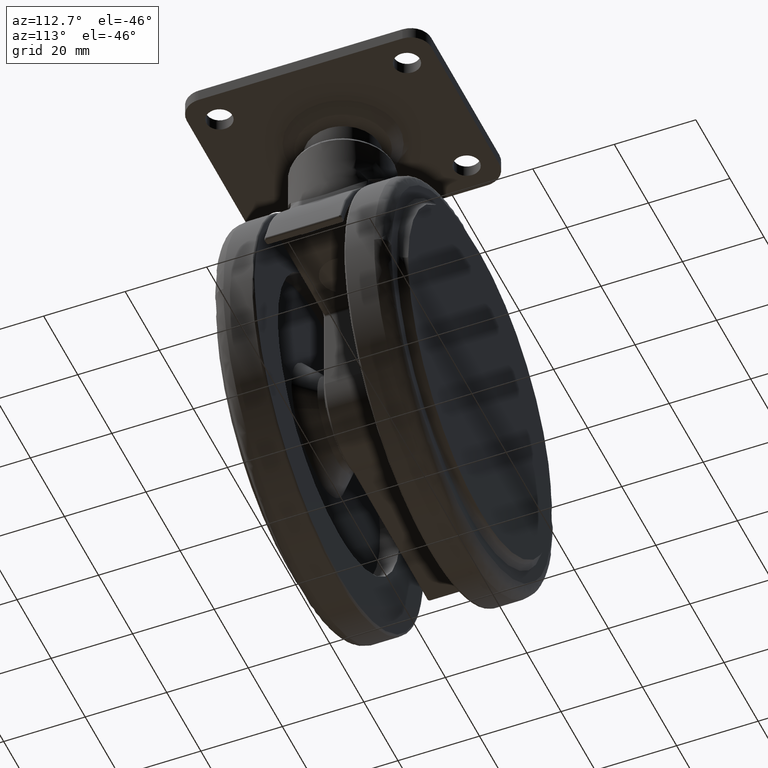
[diagram: clean part render]
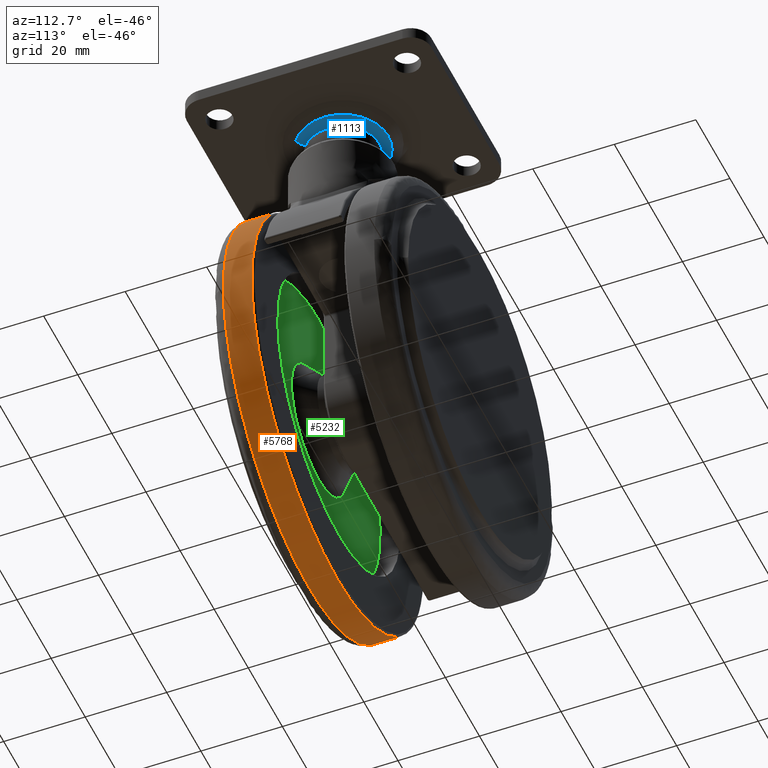
[diagram: same view with three faces highlighted in distinct colors, each labeled with its STEP entity id]
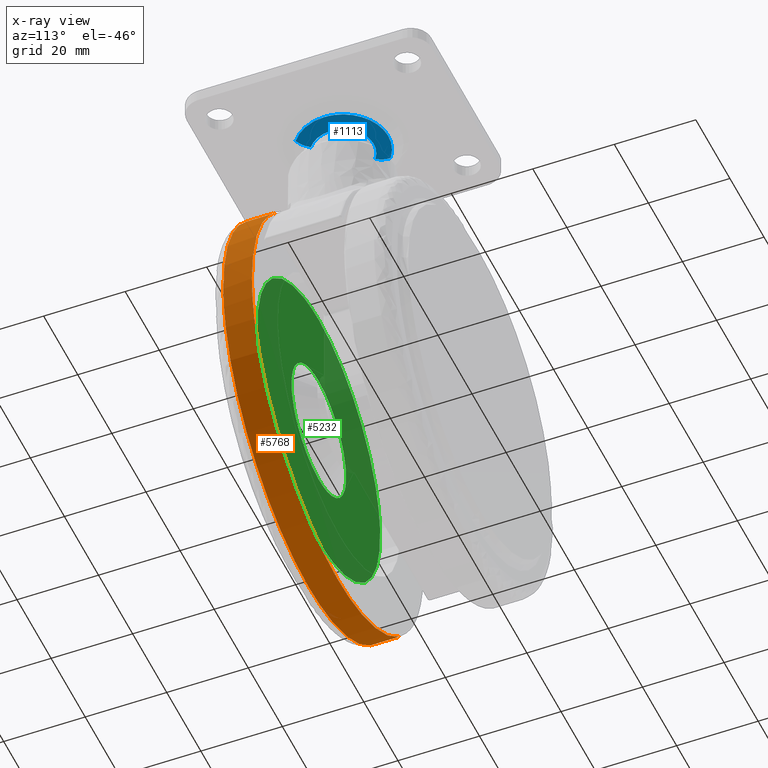
[diagram: x-ray of the same camera — body ghosted, the three highlighted faces saturated]
A machine part, auxiliary view with three faces highlighted in distinct colors.
The next image is the same camera in x-ray (body ghosted, the three faces saturated) — at least one of them is partly hidden behind the body in this view.
Their STEP definitions:

[orange] entity #5768 — the highlighted face is a freeform B-spline surface patch.
#5490=CARTESIAN_POINT('',(12.268719929465121,-11.499999997540820,-19.082272668317930));
#5491=VERTEX_POINT('',#5490);
#5505=CARTESIAN_POINT('',(25.999999999999989,-11.499999995257051,-53.500000000000007));
#5506=VERTEX_POINT('',#5505);
#5507=CARTESIAN_POINT('',(25.999999999999996,-11.499999995257053,-53.500000000000014));
#5508=CARTESIAN_POINT('',(26.000000000000004,-11.499999996203208,-33.552023862285985));
#5509=CARTESIAN_POINT('',(12.268719929465151,-11.499999997540813,-19.082272668317895));
#5517=(BOUNDED_CURVE()B_SPLINE_CURVE(2,(#5507,#5508,#5509),.UNSPECIFIED.,.F.,.U.)B_SPLINE_CURVE_WITH_KNOTS((3,3),(0.250000000000000,0.371049520613116),.UNSPECIFIED.)CURVE()GEOMETRIC_REPRESENTATION_ITEM()RATIONAL_B_SPLINE_CURVE((1.000000000000000,0.858181665087196,0.853699661817154))REPRESENTATION_ITEM(''));
#5518=EDGE_CURVE('',#5506,#5491,#5517,.T.);
#5567=CARTESIAN_POINT('',(-24.0,-11.500000000000160,-103.500000000000000));
#5568=VERTEX_POINT('',#5567);
#5569=CARTESIAN_POINT('',(-24.0,-11.500000000000160,-103.500000000000000));
#5570=CARTESIAN_POINT('',(25.999999999999961,-11.499999997628603,-103.500000000000000));
#5571=CARTESIAN_POINT('',(25.999999999999996,-11.499999995257053,-53.500000000000014));
#5579=(BOUNDED_CURVE()B_SPLINE_CURVE(2,(#5569,#5570,#5571),.UNSPECIFIED.,.F.,.U.)B_SPLINE_CURVE_WITH_KNOTS((3,3),(0.0,0.250000000000000),.UNSPECIFIED.)CURVE()GEOMETRIC_REPRESENTATION_ITEM()RATIONAL_B_SPLINE_CURVE((1.0,0.707106781186548,1.000000000000000))REPRESENTATION_ITEM(''));
#5580=EDGE_CURVE('',#5568,#5506,#5579,.T.);
#5582=CARTESIAN_POINT('',(-60.268719929465121,-11.499999997540820,-87.917727331682073));
#5583=VERTEX_POINT('',#5582);
#5584=CARTESIAN_POINT('',(-60.268719929465142,-11.499999997540812,-87.917727331682102));
#5585=CARTESIAN_POINT('',(-45.481696484769884,-11.499999998981259,-103.500000000000000));
#5586=CARTESIAN_POINT('',(-24.0,-11.500000000000160,-103.500000000000000));
#5594=(BOUNDED_CURVE()B_SPLINE_CURVE(2,(#5584,#5585,#5586),.UNSPECIFIED.,.F.,.U.)B_SPLINE_CURVE_WITH_KNOTS((3,3),(0.871049520613116,1.0),.UNSPECIFIED.)CURVE()GEOMETRIC_REPRESENTATION_ITEM()RATIONAL_B_SPLINE_CURVE((0.853699661817154,0.848925116099352,1.0))REPRESENTATION_ITEM(''));
#5595=EDGE_CURVE('',#5583,#5568,#5594,.T.);
#5636=CARTESIAN_POINT('',(-60.268719912852468,-18.500000000675200,-87.917727349188155));
#5637=VERTEX_POINT('',#5636);
#5638=CARTESIAN_POINT('',(-60.268719929465121,-11.499999997540820,-87.917727331682073));
#5639=CARTESIAN_POINT('',(-60.268719912852468,-18.500000000675200,-87.917727349188155));
#5640=QUASI_UNIFORM_CURVE('',1,(#5638,#5639),.UNSPECIFIED.,.F.,.U.);
#5641=EDGE_CURVE('',#5583,#5637,#5640,.T.);
#5675=CARTESIAN_POINT('',(12.268719912852470,-18.500000000675200,-19.082272650811849));
#5676=VERTEX_POINT('',#5675);
#5690=CARTESIAN_POINT('',(12.268719929465121,-11.499999997540820,-19.082272668317930));
#5691=CARTESIAN_POINT('',(12.268719912852470,-18.500000000675200,-19.082272650811849));
#5692=QUASI_UNIFORM_CURVE('',1,(#5690,#5691),.UNSPECIFIED.,.F.,.U.);
#5693=EDGE_CURVE('',#5491,#5676,#5692,.T.);
#5698=CARTESIAN_POINT('',(-60.268718550614373,-11.324999995105641,-87.917728784687682));
#5699=CARTESIAN_POINT('',(-25.850989765926684,-11.324999995105635,-124.186447335302060));
#5700=CARTESIAN_POINT('',(10.417728784687689,-11.324999995105641,-89.768718550614381));
#5701=CARTESIAN_POINT('',(46.686447335302063,-11.324999995105635,-55.350989765926691));
#5702=CARTESIAN_POINT('',(12.268718550614370,-11.324999995105641,-19.082271215312311));
#5703=CARTESIAN_POINT('',(-60.268718550614373,-18.679375001468870,-87.917728784687682));
#5704=CARTESIAN_POINT('',(-25.850989765926684,-18.679375001468877,-124.186447335302060));
#5705=CARTESIAN_POINT('',(10.417728784687689,-18.679375001468870,-89.768718550614381));
#5706=CARTESIAN_POINT('',(46.686447335302063,-18.679375001468877,-55.350989765926691));
#5707=CARTESIAN_POINT('',(12.268718550614370,-18.679375001468870,-19.082271215312311));
#5715=(BOUNDED_SURFACE()B_SPLINE_SURFACE(2,1,((#5698,#5703),(#5699,#5704),(#5700,#5705),(#5701,#5706),(#5702,#5707)),.UNSPECIFIED.,.F.,.F.,.U.)B_SPLINE_SURFACE_WITH_KNOTS((3,2,3),(2,2),(0.0,82.842712474618992,165.685424949238010),(0.0,7.354375006363235),.UNSPECIFIED.)GEOMETRIC_REPRESENTATION_ITEM()RATIONAL_B_SPLINE_SURFACE(((1.0,1.0),(0.707106781186548,0.707106781186548),(1.0,1.0),(0.707106781186548,0.707106781186548),(1.0,1.0)))REPRESENTATION_ITEM('')SURFACE());
#5716=ORIENTED_EDGE('',*,*,#5518,.T.);
#5717=ORIENTED_EDGE('',*,*,#5693,.T.);
#5718=CARTESIAN_POINT('',(25.996052210190680,-18.500000001313669,-54.128301994176859));
#5719=VERTEX_POINT('',#5718);
#5720=CARTESIAN_POINT('',(25.996052210190687,-18.500000001313666,-54.128301994176852));
#5721=CARTESIAN_POINT('',(25.999999999999996,-18.500000001309594,-53.814163399599096));
#5722=CARTESIAN_POINT('',(25.999999999999989,-18.500000001305470,-53.499999999999993));
#5723=CARTESIAN_POINT('',(25.999999999999993,-18.500000001043414,-33.552023848298361));
#5724=CARTESIAN_POINT('',(12.268719912852504,-18.500000000675211,-19.082272650811820));
#5732=(BOUNDED_CURVE()B_SPLINE_CURVE(2,(#5720,#5721,#5722,#5723,#5724),.UNSPECIFIED.,.F.,.U.)B_SPLINE_CURVE_WITH_KNOTS((3,2,3),(0.247784295921696,0.250000000000000,0.371049520685959),.UNSPECIFIED.)CURVE()GEOMETRIC_REPRESENTATION_ITEM()RATIONAL_B_SPLINE_CURVE((0.994854295643937,0.997404141202269,1.0,0.858181665001855,0.853699661811760))REPRESENTATION_ITEM(''));
#5733=EDGE_CURVE('',#5719,#5676,#5732,.T.);
#5734=ORIENTED_EDGE('',*,*,#5733,.F.);
#5735=CARTESIAN_POINT('',(-24.0,-18.500000000000000,-103.500000000000000));
#5736=VERTEX_POINT('',#5735);
#5737=CARTESIAN_POINT('',(-24.0,-18.500000000000000,-103.500000000000000));
#5738=CARTESIAN_POINT('',(25.375596495356582,-18.500000000656833,-103.500000000000010));
#5739=CARTESIAN_POINT('',(25.996052210190687,-18.500000001313666,-54.128301994176852));
#5747=(BOUNDED_CURVE()B_SPLINE_CURVE(2,(#5737,#5738,#5739),.UNSPECIFIED.,.F.,.U.)B_SPLINE_CURVE_WITH_KNOTS((3,3),(0.0,0.247784295921696),.UNSPECIFIED.)CURVE()GEOMETRIC_REPRESENTATION_ITEM()RATIONAL_B_SPLINE_CURVE((1.0,0.709702639984278,0.994854295643937))REPRESENTATION_ITEM(''));
#5748=EDGE_CURVE('',#5736,#5719,#5747,.T.);
#5749=ORIENTED_EDGE('',*,*,#5748,.F.);
#5750=CARTESIAN_POINT('',(-60.268719912852497,-18.500000000675211,-87.917727349188198));
#5751=CARTESIAN_POINT('',(-45.481696470475583,-18.500000000278675,-103.500000000000030));
#5752=CARTESIAN_POINT('',(-24.0,-18.500000000000000,-103.500000000000000));
#5760=(BOUNDED_CURVE()B_SPLINE_CURVE(2,(#5750,#5751,#5752),.UNSPECIFIED.,.F.,.U.)B_SPLINE_CURVE_WITH_KNOTS((3,3),(0.871049520685959,1.0),.UNSPECIFIED.)CURVE()GEOMETRIC_REPRESENTATION_ITEM()RATIONAL_B_SPLINE_CURVE((0.853699661811760,0.848925116184692,1.0))REPRESENTATION_ITEM(''));
#5761=EDGE_CURVE('',#5637,#5736,#5760,.T.);
#5762=ORIENTED_EDGE('',*,*,#5761,.F.);
#5763=ORIENTED_EDGE('',*,*,#5641,.F.);
#5764=ORIENTED_EDGE('',*,*,#5595,.T.);
#5765=ORIENTED_EDGE('',*,*,#5580,.T.);
#5766=EDGE_LOOP('',(#5716,#5717,#5734,#5749,#5762,#5763,#5764,#5765));
#5767=FACE_OUTER_BOUND('',#5766,.T.);
#5768=ADVANCED_FACE('',(#5767),#5715,.T.);

[blue] entity #1113 — the highlighted face is a freeform B-spline surface patch.
#859=CARTESIAN_POINT('',(-4.501153219696314,6.034363179694740,7.500000000000001));
#860=VERTEX_POINT('',#859);
#874=CARTESIAN_POINT('',(7.528208238966269,0.0,7.500000000000000));
#875=VERTEX_POINT('',#874);
#876=CARTESIAN_POINT('',(-4.501153219696314,6.034363179694741,7.500000000000001));
#877=CARTESIAN_POINT('',(-2.498465645499179,7.528208239083329,7.500000000000002));
#878=CARTESIAN_POINT('',(-7.151278E-011,7.528208239062140,7.500000000000001));
#879=CARTESIAN_POINT('',(7.528208238942382,7.528208238998296,7.500000000000000));
#880=CARTESIAN_POINT('',(7.528208238966269,0.0,7.500000000000000));
#888=(BOUNDED_CURVE()B_SPLINE_CURVE(2,(#876,#877,#878,#879,#880),.UNSPECIFIED.,.F.,.U.)B_SPLINE_CURVE_WITH_KNOTS((3,2,3),(0.146843395504164,0.250000000000000,0.500000000000000),.UNSPECIFIED.)CURVE()GEOMETRIC_REPRESENTATION_ITEM()RATIONAL_B_SPLINE_CURVE((0.858025367928584,0.879144520269393,1.0,0.707106781186547,1.0))REPRESENTATION_ITEM(''));
#889=EDGE_CURVE('',#860,#875,#888,.T.);
#891=CARTESIAN_POINT('',(4.501153219696315,-6.034363179694740,7.500000000000001));
#892=VERTEX_POINT('',#891);
#893=CARTESIAN_POINT('',(7.528208238966269,0.0,7.500000000000000));
#894=CARTESIAN_POINT('',(7.528208239013894,-3.776421779540552,7.500000000000000));
#895=CARTESIAN_POINT('',(4.501153219696316,-6.034363179694740,7.500000000000001));
#903=(BOUNDED_CURVE()B_SPLINE_CURVE(2,(#893,#894,#895),.UNSPECIFIED.,.F.,.U.)B_SPLINE_CURVE_WITH_KNOTS((3,3),(0.500000000000000,0.646843395504164),.UNSPECIFIED.)CURVE()GEOMETRIC_REPRESENTATION_ITEM()RATIONAL_B_SPLINE_CURVE((1.0,0.827962260917154,0.858025367928585))REPRESENTATION_ITEM(''));
#904=EDGE_CURVE('',#875,#892,#903,.T.);
#953=CARTESIAN_POINT('',(6.629213184139835,-8.887295765282616,8.669664975522940));
#954=VERTEX_POINT('',#953);
#987=CARTESIAN_POINT('',(-6.629213184139832,8.887295765282619,8.669664975522940));
#988=VERTEX_POINT('',#987);
#1002=CARTESIAN_POINT('',(-6.629213184139834,8.887295765282619,8.669664975522940));
#1003=CARTESIAN_POINT('',(-5.680097338947445,7.614886356019974,7.500000000052344));
#1004=CARTESIAN_POINT('',(-4.501153219696314,6.034363179694740,7.500000000000001));
#1012=(BOUNDED_CURVE()B_SPLINE_CURVE(2,(#1002,#1003,#1004),.UNSPECIFIED.,.F.,.U.)B_SPLINE_CURVE_WITH_KNOTS((3,3),(-1.510568351530150,-0.500285363390647),.UNSPECIFIED.)CURVE()GEOMETRIC_REPRESENTATION_ITEM()RATIONAL_B_SPLINE_CURVE((0.932509883312894,0.885422486717353,0.931508894556973))REPRESENTATION_ITEM(''));
#1013=EDGE_CURVE('',#988,#860,#1012,.T.);
#1017=CARTESIAN_POINT('',(6.629213184139836,-8.887295765282616,8.669664975522940));
#1018=CARTESIAN_POINT('',(5.680097338947446,-7.614886356019972,7.500000000052344));
#1019=CARTESIAN_POINT('',(4.501153219696315,-6.034363179694740,7.500000000000001));
#1027=(BOUNDED_CURVE()B_SPLINE_CURVE(2,(#1017,#1018,#1019),.UNSPECIFIED.,.F.,.U.)B_SPLINE_CURVE_WITH_KNOTS((3,3),(-1.510568351530149,-0.500285363390647),.UNSPECIFIED.)CURVE()GEOMETRIC_REPRESENTATION_ITEM()RATIONAL_B_SPLINE_CURVE((0.932509883312894,0.885422486717353,0.931508894556973))REPRESENTATION_ITEM(''));
#1028=EDGE_CURVE('',#954,#892,#1027,.T.);
#1033=CARTESIAN_POINT('',(-6.969751588446066,8.818466900476311,8.782642864346631));
#1034=CARTESIAN_POINT('',(-6.844591664319984,8.911826212581886,8.782642864346631));
#1035=CARTESIAN_POINT('',(2.288313896593353,15.724244697536644,8.782642864346631));
#1036=CARTESIAN_POINT('',(9.006279297064996,6.717965400471642,8.782642864346631));
#1037=CARTESIAN_POINT('',(15.724244697536644,-2.288313896593353,8.782642864346631));
#1038=CARTESIAN_POINT('',(6.591339136687957,-9.100732381499876,8.782642864346631));
#1039=CARTESIAN_POINT('',(6.466179212625038,-9.194091693558336,8.782642864346631));
#1040=CARTESIAN_POINT('',(-5.906155073983933,7.472753134465684,7.435036152212846));
#1041=CARTESIAN_POINT('',(-5.800094777349816,7.551865649151295,7.435036152212846));
#1042=CARTESIAN_POINT('',(1.939113117551729,13.324696931648703,7.435036152212846));
#1043=CARTESIAN_POINT('',(7.631905024600217,5.692791907048486,7.435036152212846));
#1044=CARTESIAN_POINT('',(13.324696931648703,-1.939113117551729,7.435036152212846));
#1045=CARTESIAN_POINT('',(5.585489036801946,-7.711944400008268,7.435036152212846));
#1046=CARTESIAN_POINT('',(5.479428740221354,-7.791056914653953,7.435036152212847));
#1047=CARTESIAN_POINT('',(-4.554023422974996,5.761970754606558,7.502906360166650));
#1048=CARTESIAN_POINT('',(-4.472244148799311,5.822971564848692,7.502906360166651));
#1049=CARTESIAN_POINT('',(1.495180273208090,10.274193814867029,7.502906360166650));
#1050=CARTESIAN_POINT('',(5.884687044037559,4.389506770829470,7.502906360166650));
#1051=CARTESIAN_POINT('',(10.274193814867029,-1.495180273208089,7.502906360166650));
#1052=CARTESIAN_POINT('',(4.306769392901876,-5.946402523194914,7.502906360166651));
#1053=CARTESIAN_POINT('',(4.224990118767461,-6.007403333406265,7.502906360166650));
#1061=(BOUNDED_SURFACE()B_SPLINE_SURFACE(2,2,((#1033,#1040,#1047),(#1034,#1041,#1048),(#1035,#1042,#1049),(#1036,#1043,#1050),(#1037,#1044,#1051),(#1038,#1045,#1052),(#1039,#1046,#1053)),.UNSPECIFIED.,.F.,.F.,.U.)B_SPLINE_SURFACE_WITH_KNOTS((3,1,2,1,3),(3,3),(0.0,0.372323022587151,18.988474145454511,37.604625268321882,37.976948290717807),(0.0,4.227851864218623),.UNSPECIFIED.)GEOMETRIC_REPRESENTATION_ITEM()RATIONAL_B_SPLINE_SURFACE(((0.948429253670149,0.890852106820982,0.947315361875224),(0.942937819878514,0.885694046434490,0.941830377550452),(0.662874696600855,0.622632966813323,0.662096177082662),(0.937446386086879,0.880535986047998,0.936345393225679),(0.662874696600855,0.622632966813323,0.662096177082662),(0.942937819875694,0.885694046431841,0.941830377547635),(0.948429253664508,0.890852106815684,0.947315361869590)))REPRESENTATION_ITEM('')SURFACE());
#1062=CARTESIAN_POINT('',(11.087402467265401,0.0,8.669664975879760));
#1063=VERTEX_POINT('',#1062);
#1064=CARTESIAN_POINT('',(11.087402467265401,0.0,8.669664975879760));
#1065=CARTESIAN_POINT('',(11.087402467120617,-5.561842449675254,8.669664975701350));
#1066=CARTESIAN_POINT('',(6.629213184139835,-8.887295765282616,8.669664975522940));
#1074=(BOUNDED_CURVE()B_SPLINE_CURVE(2,(#1064,#1065,#1066),.UNSPECIFIED.,.F.,.U.)B_SPLINE_CURVE_WITH_KNOTS((3,3),(0.500000000000000,0.646843395503392),.UNSPECIFIED.)CURVE()GEOMETRIC_REPRESENTATION_ITEM()RATIONAL_B_SPLINE_CURVE((1.0,0.827962260918059,0.858025367928268))REPRESENTATION_ITEM(''));
#1075=EDGE_CURVE('',#1063,#954,#1074,.T.);
#1076=ORIENTED_EDGE('',*,*,#1075,.T.);
#1077=ORIENTED_EDGE('',*,*,#1028,.T.);
#1078=ORIENTED_EDGE('',*,*,#904,.F.);
#1079=ORIENTED_EDGE('',*,*,#889,.F.);
#1080=ORIENTED_EDGE('',*,*,#1013,.F.);
#1081=CARTESIAN_POINT('',(4.242965232394036,10.243424207993501,8.669664975735962));
#1082=VERTEX_POINT('',#1081);
#1083=CARTESIAN_POINT('',(-6.629213184139832,8.887295765282619,8.669664975522940));
#1084=CARTESIAN_POINT('',(-3.679692867177703,11.087402466910236,8.669664975566958));
#1085=CARTESIAN_POINT('',(2.180427E-010,11.087402466975471,8.669664975642506));
#1086=CARTESIAN_POINT('',(2.205421473072545,11.087402467014568,8.669664975687784));
#1087=CARTESIAN_POINT('',(4.242965232394036,10.243424207993501,8.669664975735962));
#1095=(BOUNDED_CURVE()B_SPLINE_CURVE(2,(#1083,#1084,#1085,#1086,#1087),.UNSPECIFIED.,.F.,.U.)B_SPLINE_CURVE_WITH_KNOTS((3,2,3),(0.146843395503392,0.250000000000000,0.314972883119306),.UNSPECIFIED.)CURVE()GEOMETRIC_REPRESENTATION_ITEM()RATIONAL_B_SPLINE_CURVE((0.858025367928268,0.879144520268489,1.0,0.923879532510385,0.887325194918288))REPRESENTATION_ITEM(''));
#1096=EDGE_CURVE('',#988,#1082,#1095,.T.);
#1097=ORIENTED_EDGE('',*,*,#1096,.T.);
#1098=CARTESIAN_POINT('',(4.242965232394036,10.243424207993501,8.669664975735962));
#1099=CARTESIAN_POINT('',(11.087402467314435,7.408365478537292,8.669664975844473));
#1100=CARTESIAN_POINT('',(11.087402467265401,0.0,8.669664975879760));
#1108=(BOUNDED_CURVE()B_SPLINE_CURVE(2,(#1098,#1099,#1100),.UNSPECIFIED.,.F.,.U.)B_SPLINE_CURVE_WITH_KNOTS((3,3),(0.314972883119306,0.500000000000000),.UNSPECIFIED.)CURVE()GEOMETRIC_REPRESENTATION_ITEM()RATIONAL_B_SPLINE_CURVE((0.887325194918288,0.783227248676162,1.0))REPRESENTATION_ITEM(''));
#1109=EDGE_CURVE('',#1082,#1063,#1108,.T.);
#1110=ORIENTED_EDGE('',*,*,#1109,.T.);
#1111=EDGE_LOOP('',(#1076,#1077,#1078,#1079,#1080,#1097,#1110));
#1112=FACE_OUTER_BOUND('',#1111,.T.);
#1113=ADVANCED_FACE('',(#1112),#1061,.T.);

[green] entity #5232 — the highlighted face is a freeform B-spline surface patch.
#5052=CARTESIAN_POINT('',(-38.559380334012452,-16.000000000003048,-46.864908117466058));
#5053=VERTEX_POINT('',#5052);
#5059=CARTESIAN_POINT('',(-24.0,-16.0,-37.500000000000000));
#5060=VERTEX_POINT('',#5059);
#5061=CARTESIAN_POINT('',(-24.0,-16.0,-37.500000000000000));
#5062=CARTESIAN_POINT('',(-34.291545824205457,-16.000000000001521,-37.499999999999382));
#5063=CARTESIAN_POINT('',(-38.559380334012445,-16.000000000003052,-46.864908117466058));
#5071=(BOUNDED_CURVE()B_SPLINE_CURVE(2,(#5061,#5062,#5063),.UNSPECIFIED.,.F.,.U.)B_SPLINE_CURVE_WITH_KNOTS((3,3),(0.500000000000000,0.679570116084181),.UNSPECIFIED.)CURVE()GEOMETRIC_REPRESENTATION_ITEM()RATIONAL_B_SPLINE_CURVE((1.0,0.789620522789596,0.881463982734404))REPRESENTATION_ITEM(''));
#5072=EDGE_CURVE('',#5060,#5053,#5071,.T.);
#5074=CARTESIAN_POINT('',(-9.440619665987555,-16.000000000003048,-60.135091882533942));
#5075=VERTEX_POINT('',#5074);
#5076=CARTESIAN_POINT('',(-9.440619665987555,-16.000000000003052,-60.135091882533942));
#5077=CARTESIAN_POINT('',(-7.999999999997458,-16.000000000002832,-56.973940536759216));
#5078=CARTESIAN_POINT('',(-7.999999999997754,-16.000000000002512,-53.500000000001030));
#5079=CARTESIAN_POINT('',(-7.999999999999121,-16.000000000000973,-37.500000000000391));
#5080=CARTESIAN_POINT('',(-24.0,-16.0,-37.500000000000000));
#5088=(BOUNDED_CURVE()B_SPLINE_CURVE(2,(#5076,#5077,#5078,#5079,#5080),.UNSPECIFIED.,.F.,.U.)B_SPLINE_CURVE_WITH_KNOTS((3,2,3),(0.179570116084181,0.250000000000000,0.500000000000000),.UNSPECIFIED.)CURVE()GEOMETRIC_REPRESENTATION_ITEM()RATIONAL_B_SPLINE_CURVE((0.881463982734404,0.917486258396952,1.0,0.707106781186548,1.0))REPRESENTATION_ITEM(''));
#5089=EDGE_CURVE('',#5075,#5060,#5088,.T.);
#5119=CARTESIAN_POINT('',(-24.0,-16.0,-69.500000000000000));
#5120=VERTEX_POINT('',#5119);
#5121=CARTESIAN_POINT('',(-24.0,-16.0,-69.500000000000000));
#5122=CARTESIAN_POINT('',(-13.708454175794540,-16.000000000001521,-69.500000000000625));
#5123=CARTESIAN_POINT('',(-9.440619665987555,-16.000000000003052,-60.135091882533942));
#5131=(BOUNDED_CURVE()B_SPLINE_CURVE(2,(#5121,#5122,#5123),.UNSPECIFIED.,.F.,.U.)B_SPLINE_CURVE_WITH_KNOTS((3,3),(0.0,0.179570116084181),.UNSPECIFIED.)CURVE()GEOMETRIC_REPRESENTATION_ITEM()RATIONAL_B_SPLINE_CURVE((1.0,0.789620522789596,0.881463982734404))REPRESENTATION_ITEM(''));
#5132=EDGE_CURVE('',#5120,#5075,#5131,.T.);
#5134=CARTESIAN_POINT('',(-38.559380334012445,-16.000000000003052,-46.864908117466058));
#5135=CARTESIAN_POINT('',(-40.000000000002537,-16.000000000002832,-50.026059463240799));
#5136=CARTESIAN_POINT('',(-40.000000000002252,-16.000000000002512,-53.499999999998977));
#5137=CARTESIAN_POINT('',(-40.000000000000888,-16.000000000000973,-69.499999999999616));
#5138=CARTESIAN_POINT('',(-24.0,-16.0,-69.500000000000000));
#5146=(BOUNDED_CURVE()B_SPLINE_CURVE(2,(#5134,#5135,#5136,#5137,#5138),.UNSPECIFIED.,.F.,.U.)B_SPLINE_CURVE_WITH_KNOTS((3,2,3),(0.679570116084181,0.750000000000000,1.0),.UNSPECIFIED.)CURVE()GEOMETRIC_REPRESENTATION_ITEM()RATIONAL_B_SPLINE_CURVE((0.881463982734404,0.917486258396952,1.0,0.707106781186548,1.0))REPRESENTATION_ITEM(''));
#5147=EDGE_CURVE('',#5053,#5120,#5146,.T.);
#5155=CARTESIAN_POINT('',(-63.595513943130882,-16.0,-93.096399860450020));
#5156=CARTESIAN_POINT('',(-63.595513943130882,-16.0,-13.903598208359480));
#5157=CARTESIAN_POINT('',(15.595512655670561,-16.0,-93.096399860450020));
#5158=CARTESIAN_POINT('',(15.595512655670561,-16.0,-13.903598208359480));
#5159=B_SPLINE_SURFACE_WITH_KNOTS('',1,1,((#5155,#5157),(#5156,#5158)),.UNSPECIFIED.,.F.,.F.,.U.,(2,2),(2,2),(0.0,79.192801652090537),(0.0,79.191026598801443),.UNSPECIFIED.);
#5160=CARTESIAN_POINT('',(-59.932855300568612,-16.000000000000750,-51.302294390360089));
#5161=VERTEX_POINT('',#5160);
#5162=CARTESIAN_POINT('',(-24.0,-16.0,-89.500000000000000));
#5163=VERTEX_POINT('',#5162);
#5164=CARTESIAN_POINT('',(-59.932855300568605,-16.000000000000746,-51.302294390360089));
#5165=CARTESIAN_POINT('',(-59.999999999976005,-16.000000000000735,-52.400121486678529));
#5166=CARTESIAN_POINT('',(-59.999999999976389,-16.000000000000728,-53.500000000001457));
#5167=CARTESIAN_POINT('',(-59.999999999988553,-16.000000000000355,-89.500000000000725));
#5168=CARTESIAN_POINT('',(-24.0,-16.0,-89.500000000000000));
#5176=(BOUNDED_CURVE()B_SPLINE_CURVE(2,(#5164,#5165,#5166,#5167,#5168),.UNSPECIFIED.,.F.,.U.)B_SPLINE_CURVE_WITH_KNOTS((3,2,3),(0.739333163027755,0.750000000000000,1.0),.UNSPECIFIED.)CURVE()GEOMETRIC_REPRESENTATION_ITEM()RATIONAL_B_SPLINE_CURVE((0.976072471995741,0.987503023138563,1.0,0.707106781186547,1.0))REPRESENTATION_ITEM(''));
#5177=EDGE_CURVE('',#5161,#5163,#5176,.T.);
#5178=ORIENTED_EDGE('',*,*,#5177,.F.);
#5179=CARTESIAN_POINT('',(-24.0,-16.0,-17.500000000000000));
#5180=VERTEX_POINT('',#5179);
#5181=CARTESIAN_POINT('',(-24.0,-16.0,-17.500000000000000));
#5182=CARTESIAN_POINT('',(-57.865457890077316,-16.000000000000380,-17.500000000000746));
#5183=CARTESIAN_POINT('',(-59.932855300568605,-16.000000000000746,-51.302294390360089));
#5191=(BOUNDED_CURVE()B_SPLINE_CURVE(2,(#5181,#5182,#5183),.UNSPECIFIED.,.F.,.U.)B_SPLINE_CURVE_WITH_KNOTS((3,3),(0.500000000000000,0.739333163027755),.UNSPECIFIED.)CURVE()GEOMETRIC_REPRESENTATION_ITEM()RATIONAL_B_SPLINE_CURVE((1.0,0.719603758047984,0.976072471995741))REPRESENTATION_ITEM(''));
#5192=EDGE_CURVE('',#5180,#5161,#5191,.T.);
#5193=ORIENTED_EDGE('',*,*,#5192,.F.);
#5194=CARTESIAN_POINT('',(11.932855300568610,-16.000000000000750,-55.697705609639897));
#5195=VERTEX_POINT('',#5194);
#5196=CARTESIAN_POINT('',(11.932855300568608,-16.000000000000753,-55.697705609639890));
#5197=CARTESIAN_POINT('',(11.999999999976009,-16.000000000000735,-54.599878513321464));
#5198=CARTESIAN_POINT('',(11.999999999976380,-16.000000000000728,-53.499999999998550));
#5199=CARTESIAN_POINT('',(11.999999999988551,-16.000000000000355,-17.499999999999307));
#5200=CARTESIAN_POINT('',(-24.0,-16.0,-17.500000000000000));
#5208=(BOUNDED_CURVE()B_SPLINE_CURVE(2,(#5196,#5197,#5198,#5199,#5200),.UNSPECIFIED.,.F.,.U.)B_SPLINE_CURVE_WITH_KNOTS((3,2,3),(0.239333163027755,0.250000000000000,0.500000000000000),.UNSPECIFIED.)CURVE()GEOMETRIC_REPRESENTATION_ITEM()RATIONAL_B_SPLINE_CURVE((0.976072471995742,0.987503023138563,1.0,0.707106781186547,1.0))REPRESENTATION_ITEM(''));
#5209=EDGE_CURVE('',#5195,#5180,#5208,.T.);
#5210=ORIENTED_EDGE('',*,*,#5209,.F.);
#5211=CARTESIAN_POINT('',(-24.0,-16.0,-89.500000000000000));
#5212=CARTESIAN_POINT('',(9.865457890077339,-16.000000000000369,-89.499999999999275));
#5213=CARTESIAN_POINT('',(11.932855300568608,-16.000000000000753,-55.697705609639890));
#5221=(BOUNDED_CURVE()B_SPLINE_CURVE(2,(#5211,#5212,#5213),.UNSPECIFIED.,.F.,.U.)B_SPLINE_CURVE_WITH_KNOTS((3,3),(0.0,0.239333163027755),.UNSPECIFIED.)CURVE()GEOMETRIC_REPRESENTATION_ITEM()RATIONAL_B_SPLINE_CURVE((1.0,0.719603758047984,0.976072471995742))REPRESENTATION_ITEM(''));
#5222=EDGE_CURVE('',#5163,#5195,#5221,.T.);
#5223=ORIENTED_EDGE('',*,*,#5222,.F.);
#5224=EDGE_LOOP('',(#5178,#5193,#5210,#5223));
#5225=FACE_OUTER_BOUND('',#5224,.T.);
#5226=ORIENTED_EDGE('',*,*,#5072,.T.);
#5227=ORIENTED_EDGE('',*,*,#5147,.T.);
#5228=ORIENTED_EDGE('',*,*,#5132,.T.);
#5229=ORIENTED_EDGE('',*,*,#5089,.T.);
#5230=EDGE_LOOP('',(#5226,#5227,#5228,#5229));
#5231=FACE_BOUND('',#5230,.T.);
#5232=ADVANCED_FACE('',(#5225,#5231),#5159,.T.);